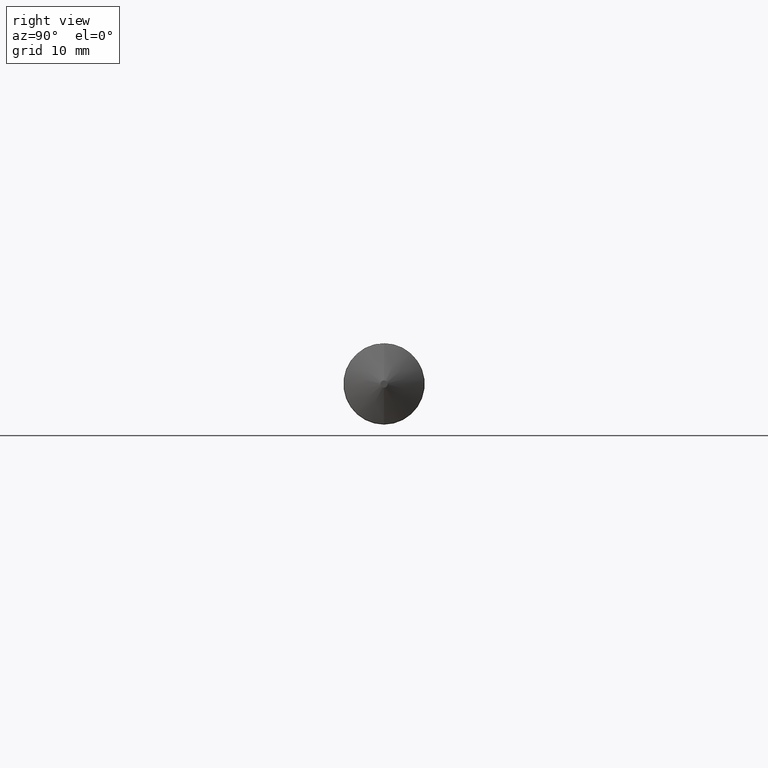
[diagram: clean part render]
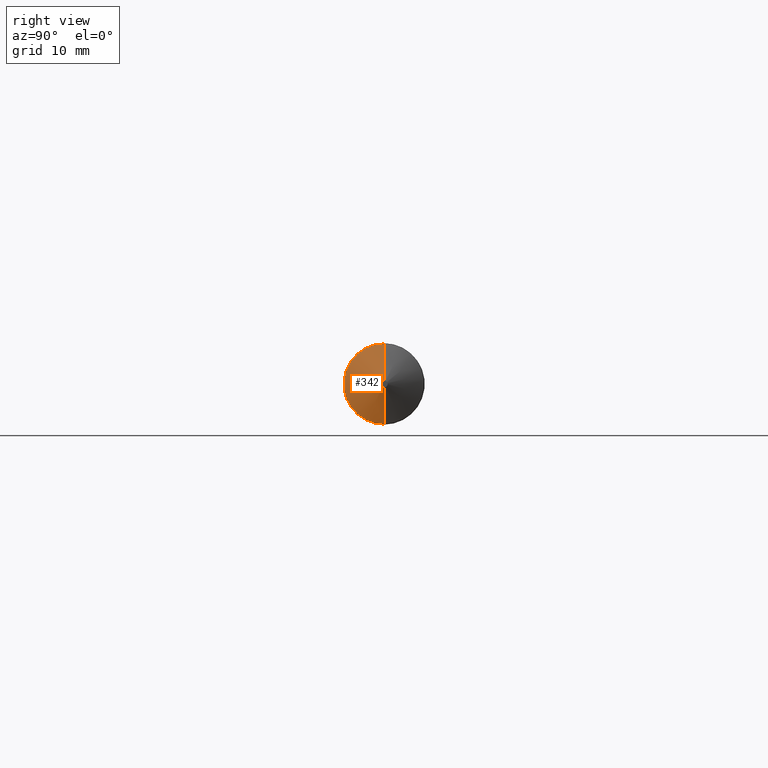
[diagram: same view with one face highlighted and labeled with its STEP entity id]
A machine part, right view. The second image highlights one B-rep face of the part: STEP entity #342.
In plain terms, the highlighted conical surface has half-angle 70 deg.
Its self-contained STEP definition (entity closure, byte-faithful):
#8 = VERTEX_POINT ( 'NONE', #329 ) ;
#21 = AXIS2_PLACEMENT_3D ( 'NONE', #269, #125, #213 ) ;
#25 = DIRECTION ( 'NONE',  ( -0.3420201433256665480, 1.150791560227851256E-16, -0.9396926207859092051 ) ) ;
#33 = EDGE_CURVE ( 'NONE', #205, #8, #122, .T. ) ;
#34 = ORIENTED_EDGE ( 'NONE', *, *, #45, .T. ) ;
#45 = EDGE_CURVE ( 'NONE', #8, #89, #69, .T. ) ;
#49 = CARTESIAN_POINT ( 'NONE',  ( 3.503937007874015741, 1.298125607096199845E-17, -0.01750000000000043535 ) ) ;
#51 = LINE ( 'NONE', #344, #166 ) ;
#58 = CARTESIAN_POINT ( 'NONE',  ( 3.503937007874015741, 0.000000000000000000, 0.000000000000000000 ) ) ;
#66 = DIRECTION ( 'NONE',  ( 1.000000000000000000, -0.000000000000000000, -0.000000000000000000 ) ) ;
#69 = CIRCLE ( 'NONE', #21, 0.1945000000000004503 ) ;
#76 = EDGE_CURVE ( 'NONE', #205, #261, #151, .T. ) ;
#83 = DIRECTION ( 'NONE',  ( 0.000000000000000000, 0.000000000000000000, -1.000000000000000000 ) ) ;
#87 = ORIENTED_EDGE ( 'NONE', *, *, #33, .T. ) ;
#89 = VERTEX_POINT ( 'NONE', #339 ) ;
#97 = DIRECTION ( 'NONE',  ( -0.3420201433256665480, 0.000000000000000000, 0.9396926207859092051 ) ) ;
#98 = VECTOR ( 'NONE', #97, 39.37007874015748143 ) ;
#111 = CONICAL_SURFACE ( 'NONE', #128, 0.01750000000000043535, 1.221730476396033049 ) ;
#122 = LINE ( 'NONE', #355, #98 ) ;
#125 = DIRECTION ( 'NONE',  ( 1.000000000000000000, -0.000000000000000000, -0.000000000000000000 ) ) ;
#128 = AXIS2_PLACEMENT_3D ( 'NONE', #58, #142, #177 ) ;
#142 = DIRECTION ( 'NONE',  ( -1.000000000000000000, 0.000000000000000000, 0.000000000000000000 ) ) ;
#144 = ORIENTED_EDGE ( 'NONE', *, *, #270, .F. ) ;
#151 = CIRCLE ( 'NONE', #341, 0.01750000000000043535 ) ;
#166 = VECTOR ( 'NONE', #25, 39.37007874015748143 ) ;
#177 = DIRECTION ( 'NONE',  ( 0.000000000000000000, 0.000000000000000000, 1.000000000000000000 ) ) ;
#205 = VERTEX_POINT ( 'NONE', #282 ) ;
#213 = DIRECTION ( 'NONE',  ( 0.000000000000000000, 0.000000000000000000, -1.000000000000000000 ) ) ;
#235 = CARTESIAN_POINT ( 'NONE',  ( 3.503937007874015741, 0.000000000000000000, 0.000000000000000000 ) ) ;
#236 = ORIENTED_EDGE ( 'NONE', *, *, #76, .F. ) ;
#261 = VERTEX_POINT ( 'NONE', #49 ) ;
#269 = CARTESIAN_POINT ( 'NONE',  ( 3.439514276408898397, 0.000000000000000000, 0.000000000000000000 ) ) ;
#270 = EDGE_CURVE ( 'NONE', #261, #89, #51, .T. ) ;
#276 = EDGE_LOOP ( 'NONE', ( #144, #236, #87, #34 ) ) ;
#282 = CARTESIAN_POINT ( 'NONE',  ( 3.503937007874015741, 0.000000000000000000, 0.01750000000000043535 ) ) ;
#289 = FACE_OUTER_BOUND ( 'NONE', #276, .T. ) ;
#329 = CARTESIAN_POINT ( 'NONE',  ( 3.439514276408898397, 0.000000000000000000, 0.1945000000000004781 ) ) ;
#339 = CARTESIAN_POINT ( 'NONE',  ( 3.439514276408898397, 2.381938024341608115E-17, -0.1945000000000004781 ) ) ;
#341 = AXIS2_PLACEMENT_3D ( 'NONE', #235, #66, #83 ) ;
#342 = ADVANCED_FACE ( 'NONE', ( #289 ), #111, .T. ) ;
#344 = CARTESIAN_POINT ( 'NONE',  ( 3.503937007874015741, 2.143131898507921145E-18, -0.01750000000000043535 ) ) ;
#355 = CARTESIAN_POINT ( 'NONE',  ( 3.503937007874015741, 0.000000000000000000, 0.01750000000000043535 ) ) ;